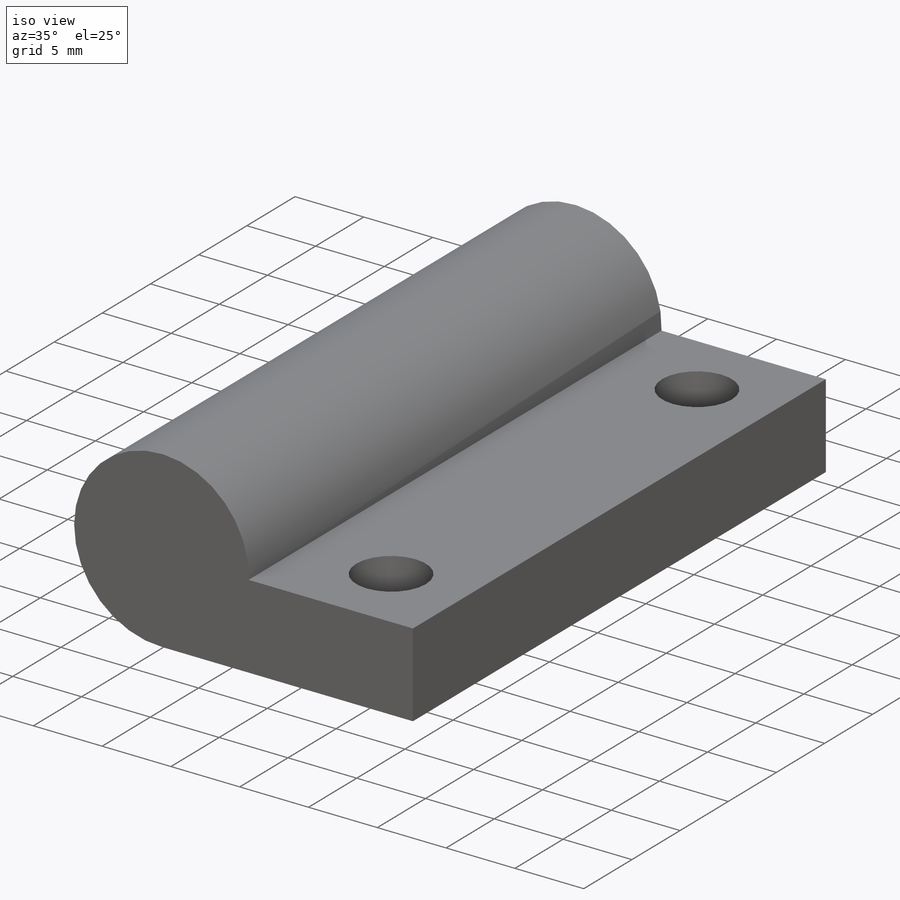
[diagram: iso view]
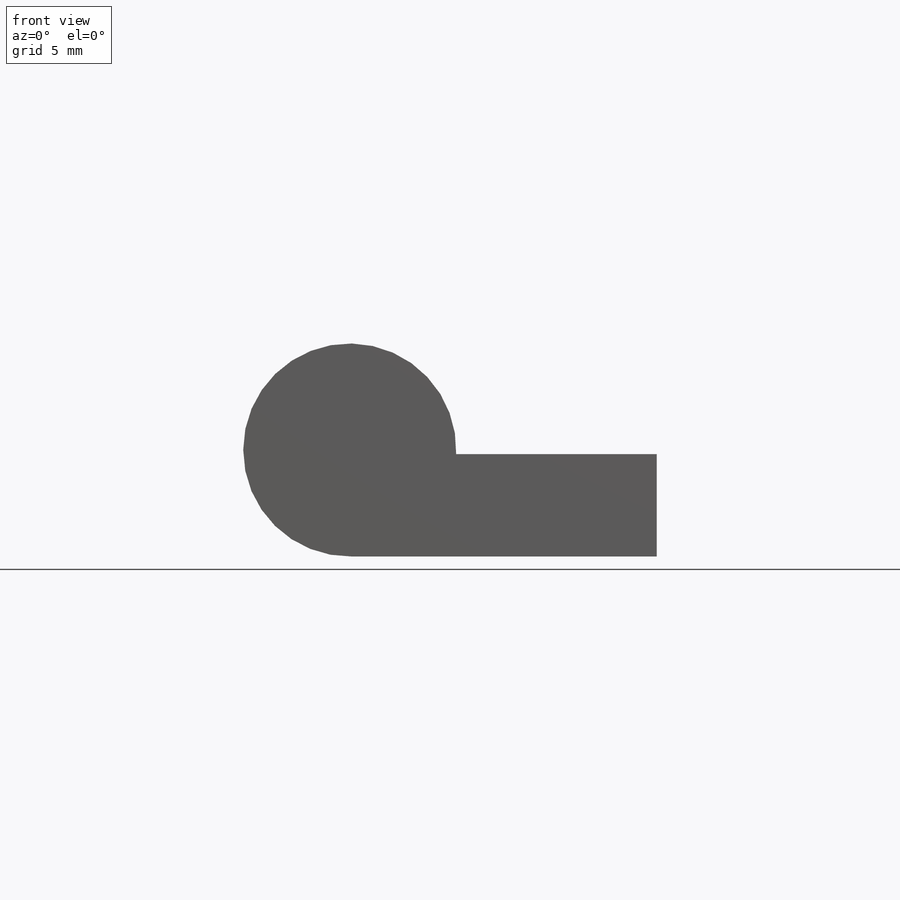
[diagram: front view]
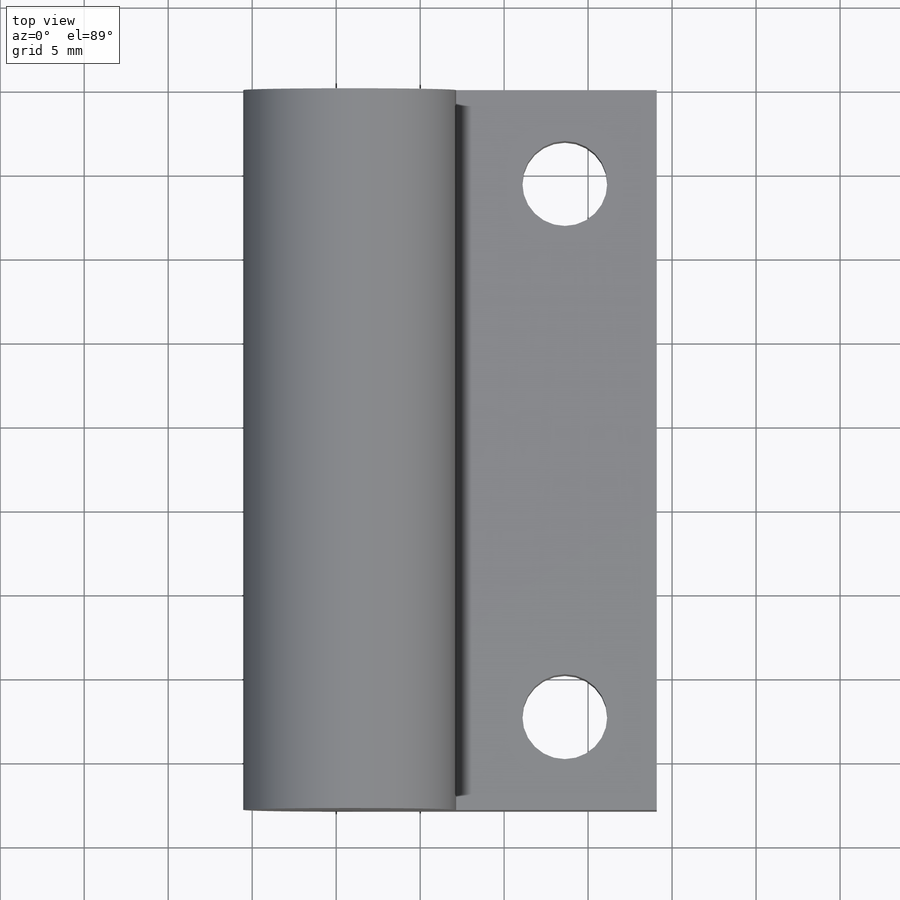
[diagram: top view]
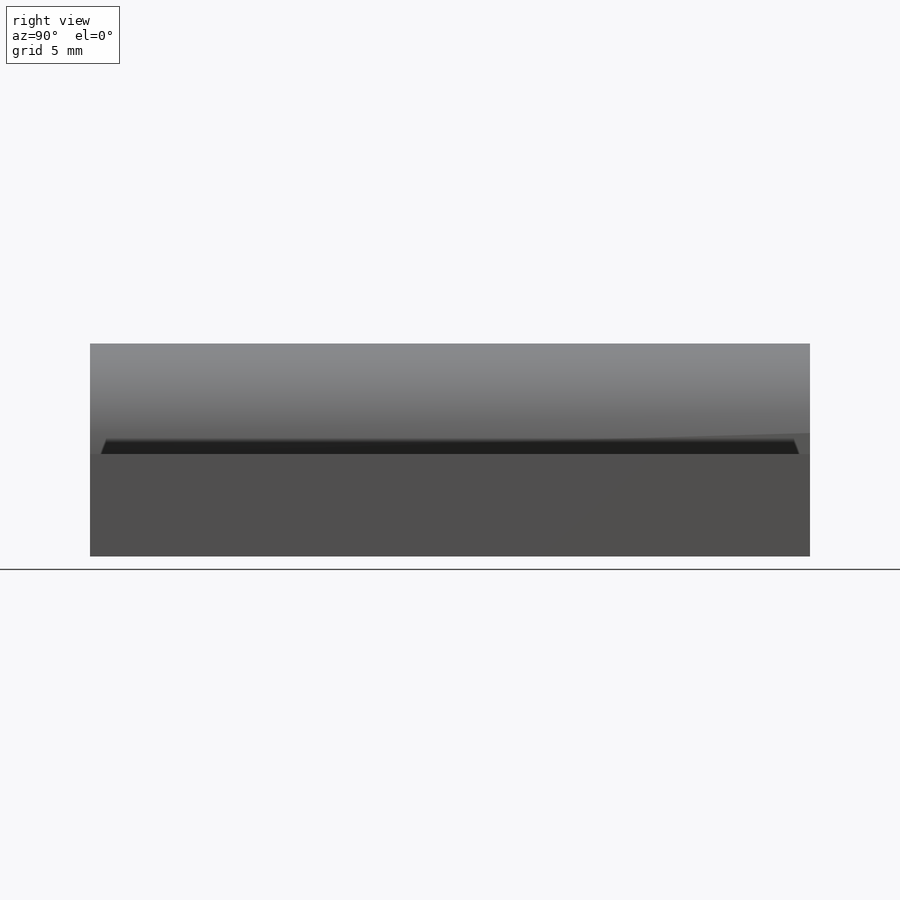
[diagram: right view]
SOLIDWORKS PART (.sldprt)
format: sldprt  version: not decoded by parser v0  size: 164,864 bytes
history: native  units: mm
features: sketch x3, material x1, extrude x1, hole x1 + 1 further entry (+15 scaffold rows collapsed)
feature tree (22):
  scaffold x15  (default folders/planes/origin — collapsed)
  material  "Material <not specified>"
  "Annotations"  RD1=42.8625mm
  sketch  "Sketch1"  dims[D1=7.112mm]
  extrude  "Boss-Extrude1"  Depth=42.8625mm
  hole  "#8 (0.199) Diameter Hole1"  Diameter=5.0546mm Depth=6.35mm
  sketch  "Sketch4"  dims[D1=31.75mm D2=~5.55625mm D3=12.7mm D4=12.7mm]
  sketch  "Sketch3"  dims[hole-wizard template sketch: 47 standard entries collapsed; hole parameters kept: c15.Hole Depth=6.35mm c15.D3=~14.816244mm c15.Drill Angle=118.0deg]
decode coverage: 5 of 5 modeling features carry decoded parameters; 1 rows unclassified (native names shown)
note: ~ marks probable driven/reference dimensions
note: suppression state not decoded; provenance and decode notes live in map.json
